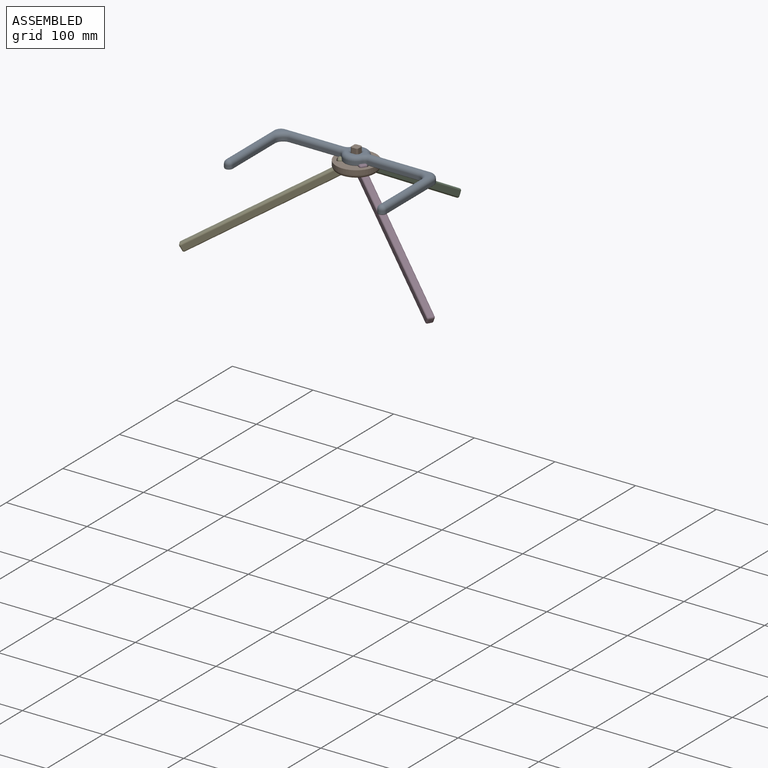
[diagram: assembled view]
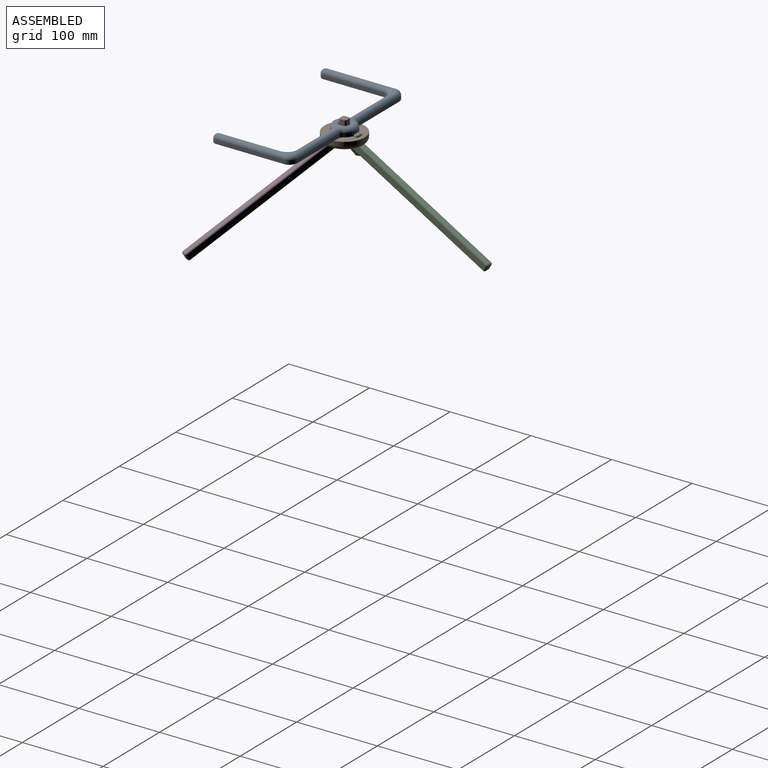
[diagram: assembled view, second angle]
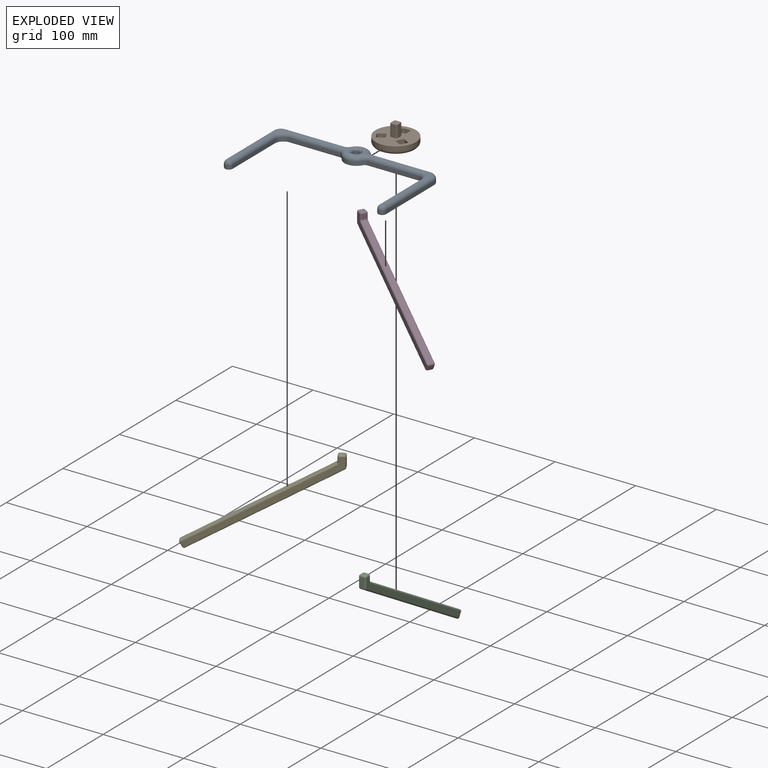
[diagram: exploded view]
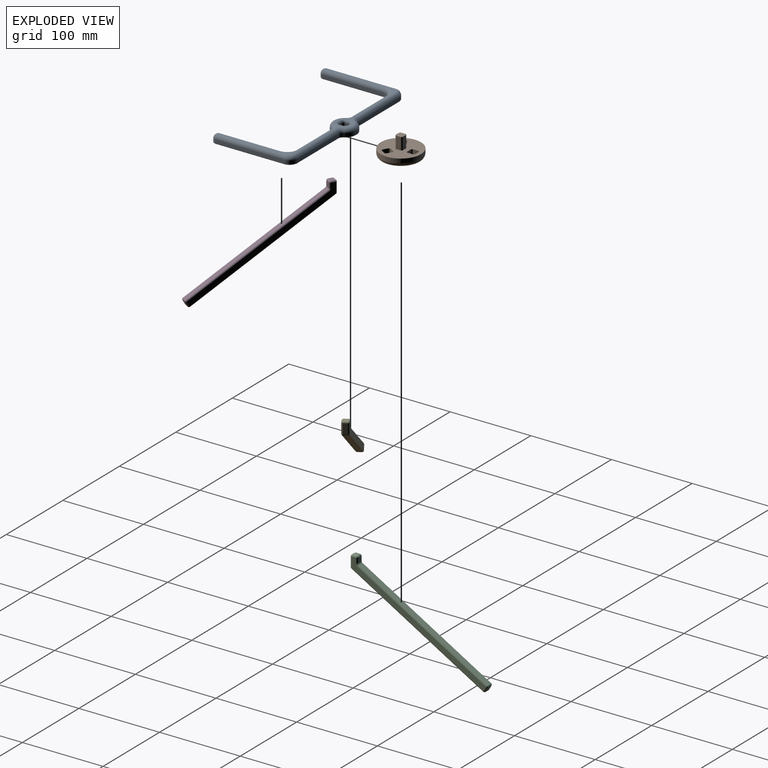
[diagram: exploded view, second angle]
ASSEMBLY  parts=5 mates=4
PART A: 88 faces, bbox 201.7x111.7x10 mm
  f0: cylinder r=3mm len=5.68mm, axis (0,0,1), area 26.8mm2, adj f11,f12,f79,f83
  f1: bspline ~3.26x3.26mm, area 4.2mm2, adj f5,f12,f29,f72,f73,f76
  f2: cylinder r=3mm len=5.68mm, axis (0,0,1), area 26.8mm2, adj f10,f29,f77,f82
  f3: bspline ~3.26x3.26mm, area 4.2mm2, adj f7,f10,f11,f74,f75,f87
  f4: bspline ~2.96x2.95mm, area 3.9mm2, adj f73,f75,f79
  f5: bspline ~2.96x2.95mm, area 3.9mm2, adj f1,f72,f73
  f6: bspline ~3.11x3.11mm, area 2.5mm2, adj f72,f74,f77
  f7: bspline ~3.11x3.11mm, area 2.5mm2, adj f3,f74,f75
  f8: plane 34.64x20mm, normal (0,0,1), area 121.3mm2, adj f38,f41,f42,f43,f44,f47,f78,f80
  f9: plane 15x15mm, normal (0,0,1), area 42.9mm2, adj f46,f48,f49,f50
  f10: plane 6.03x4.03mm, normal (0,-1,0), area 24mm2, adj f2,f3,f74,f77,f84,f87
  f11: plane 6.03x4.03mm, normal (-1,0,0), area 24mm2, adj f0,f3,f75,f79,f85,f87
  f12: plane 6.03x4.03mm, normal (0,1,0), area 24mm2, adj f0,f1,f73,f76,f79,f81
  f13: plane 72.68x4mm, normal (0,1,0), area 290.7mm2, adj f14,f36,f39,f54
  f14: cylinder r=10mm len=10mm, axis (0,0,-1), area 62.8mm2, adj f13,f15,f37,f56
  f15: plane 85x4mm, normal (-1,0,0), area 340mm2, adj f14,f16,f32,f58
  f16: cylinder r=5mm len=10mm, axis (0,0,-1), area 62.8mm2, adj f15,f17,f33,f60
  f17: plane 75x4mm, normal (1,0,0), area 300mm2, adj f16,f18,f32,f62
  f18: cylinder r=10mm len=10mm, axis (0,0,-1), area 62.8mm2, adj f17,f19,f34,f64
  f19: plane 62.68x4mm, normal (0,-1,0), area 250.7mm2, adj f18,f35,f36,f66
  f20: cylinder r=15mm len=25.98mm, axis (0,0,-1), area 125.7mm2, adj f35,f40,f41,f70
  f21: plane 62.68x4mm, normal (0,-1,0), area 250.7mm2, adj f22,f40,f46,f69
  f22: cylinder r=10mm len=10mm, axis (0,0,-1), area 62.8mm2, adj f21,f23,f48,f67
  f23: plane 75x4mm, normal (-1,0,0), area 300mm2, adj f22,f24,f49,f65
  f24: cylinder r=5mm len=10mm, axis (0,0,-1), area 62.8mm2, adj f23,f25,f51,f63
  f25: plane 85x4mm, normal (1,0,0), area 340mm2, adj f24,f26,f49,f61
  f26: cylinder r=10mm len=10mm, axis (0,0,-1), area 62.8mm2, adj f25,f27,f50,f59
  f27: plane 72.68x4mm, normal (0,1,0), area 290.7mm2, adj f26,f45,f46,f57
  f28: cylinder r=15mm len=25.98mm, axis (0,0,-1), area 125.7mm2, adj f39,f44,f45,f53
  f29: plane 6.03x4.03mm, normal (1,0,0), area 24mm2, adj f1,f2,f72,f76,f77,f80
  f30: plane 15x15mm, normal (0,0,1), area 42.9mm2, adj f32,f34,f36,f37
  f31: plane 198x108mm, normal (0,0,-1), area 3287.8mm2, adj f52,f53,f54,f55,f56,f57,f58,f59
  f32: cylinder r=5mm len=85mm, axis (0,-1,0), area 1256.6mm2, adj f15,f17,f30,f33,f34,f37
  f33: sphere r=5mm, area 78.5mm2, adj f16,f32
  f34: torus R=15mm, axis (0,0,1), area 145.8mm2, adj f18,f30,f32,f36
  f35: cylinder r=5mm len=4.33mm, axis (0,0,-1), area 20.9mm2, adj f19,f20,f38,f68
  f36: cylinder r=5mm len=72.68mm, axis (-1,0,0), area 1063.1mm2, adj f13,f19,f30,f34,f37,f38,f42
  f37: torus R=5mm, axis (0,0,1), area 101mm2, adj f14,f30,f32,f36
  f38: torus R=10mm, axis (0,0,1), area 56.1mm2, adj f8,f35,f36,f41
  f39: cylinder r=5mm len=4.33mm, axis (0,0,-1), area 20.9mm2, adj f13,f28,f42,f52
  f40: cylinder r=5mm len=4.33mm, axis (0,0,-1), area 20.9mm2, adj f20,f21,f43,f71
  f41: torus R=10mm, axis (0,0,1), area 216.9mm2, adj f8,f20,f38,f43
  f42: torus R=10mm, axis (0,0,1), area 56.1mm2, adj f8,f36,f39,f44
  f43: torus R=10mm, axis (0,0,1), area 56.1mm2, adj f8,f40,f41,f46
  f44: torus R=10mm, axis (0,0,1), area 216.9mm2, adj f8,f28,f42,f47
  f45: cylinder r=5mm len=4.33mm, axis (0,0,-1), area 20.9mm2, adj f27,f28,f47,f55
  f46: cylinder r=5mm len=72.68mm, axis (-1,0,0), area 1063.1mm2, adj f9,f21,f27,f43,f47,f48,f50
  f47: torus R=10mm, axis (0,0,1), area 56.1mm2, adj f8,f44,f45,f46
  f48: torus R=15mm, axis (0,0,1), area 145.8mm2, adj f9,f22,f46,f49
  f49: cylinder r=5mm len=85mm, axis (0,1,0), area 1256.6mm2, adj f9,f23,f25,f48,f50,f51
  f50: torus R=5mm, axis (0,0,1), area 101mm2, adj f9,f26,f46,f49
  f51: sphere r=5mm, area 78.5mm2, adj f24,f49
  f52: torus R=6mm, axis (0,0,1), area 8.8mm2, adj f31,f39,f53,f54
  f53: torus R=14mm, axis (0,0,1), area 48.2mm2, adj f28,f31,f52,f55
  f54: cylinder r=1mm len=72.68mm, axis (-1,0,0), area 114.2mm2, adj f13,f31,f52,f56
  f55: torus R=6mm, axis (0,0,1), area 8.8mm2, adj f31,f45,f53,f57
  f56: torus R=9mm, axis (0,0,1), area 23.8mm2, adj f14,f31,f54,f58
  f57: cylinder r=1mm len=72.68mm, axis (-1,0,0), area 114.2mm2, adj f27,f31,f55,f59
  f58: cylinder r=1mm len=85mm, axis (0,-1,0), area 133.5mm2, adj f15,f31,f56,f60
  f59: torus R=9mm, axis (0,0,1), area 23.8mm2, adj f26,f31,f57,f61
  f60: torus R=4mm, axis (0,0,1), area 22.9mm2, adj f16,f31,f58,f62
  f61: cylinder r=1mm len=85mm, axis (0,1,0), area 133.5mm2, adj f25,f31,f59,f63
  f62: cylinder r=1mm len=75mm, axis (0,1,0), area 117.8mm2, adj f17,f31,f60,f64
  f63: torus R=4mm, axis (0,0,1), area 22.9mm2, adj f24,f31,f61,f65
  f64: torus R=11mm, axis (0,0,1), area 25.6mm2, adj f18,f31,f62,f66
  f65: cylinder r=1mm len=75mm, axis (0,-1,0), area 117.8mm2, adj f23,f31,f63,f67
  f66: cylinder r=1mm len=62.68mm, axis (1,0,0), area 98.5mm2, adj f19,f31,f64,f68
  f67: torus R=11mm, axis (0,0,1), area 25.6mm2, adj f22,f31,f65,f69
  f68: torus R=6mm, axis (0,0,1), area 8.8mm2, adj f31,f35,f66,f70
  f69: cylinder r=1mm len=62.68mm, axis (1,0,0), area 98.5mm2, adj f21,f31,f67,f71
  f70: torus R=14mm, axis (0,0,1), area 48.2mm2, adj f20,f31,f68,f71
  f71: torus R=6mm, axis (0,0,1), area 8.8mm2, adj f31,f40,f69,f70
  f72: cylinder r=1mm len=12mm, axis (0,1,0), area 11.3mm2, adj f1,f5,f6,f29,f31,f77
  f73: cylinder r=1mm len=12mm, axis (-1,0,0), area 11.3mm2, adj f1,f4,f5,f12,f31,f79
  f74: cylinder r=1mm len=12mm, axis (1,0,0), area 11.3mm2, adj f3,f6,f7,f10,f31,f77
  f75: cylinder r=1mm len=12mm, axis (0,-1,0), area 11.3mm2, adj f3,f4,f7,f11,f31,f79
  f76: cylinder r=3mm len=5.68mm, axis (0,0,-1), area 26.8mm2, adj f1,f12,f29,f78
  f77: bspline ~3.26x3.26mm, area 4.2mm2, adj f2,f6,f10,f29,f72,f74
  f78: torus R=6mm, axis (0,0,1), area 30.3mm2, adj f8,f76,f80,f81
  f79: bspline ~3.26x3.26mm, area 4.2mm2, adj f0,f4,f11,f12,f73,f75
  f80: cylinder r=3mm len=4mm, axis (0,-1,0), area 18.8mm2, adj f8,f29,f78,f82
  f81: cylinder r=3mm len=4mm, axis (1,0,0), area 18.8mm2, adj f8,f12,f78,f83
  f82: torus R=6mm, axis (0,0,1), area 30.3mm2, adj f2,f8,f80,f84
  f83: torus R=6mm, axis (0,0,1), area 30.3mm2, adj f0,f8,f81,f85
  f84: cylinder r=3mm len=4mm, axis (-1,0,0), area 18.8mm2, adj f8,f10,f82,f86
  f85: cylinder r=3mm len=4mm, axis (0,1,0), area 18.8mm2, adj f8,f11,f83,f86
  f86: torus R=6mm, axis (0,0,1), area 30.3mm2, adj f8,f84,f85,f87
  f87: cylinder r=3mm len=5.68mm, axis (0,0,-1), area 26.8mm2, adj f3,f10,f11,f86
PART B: 37 faces, bbox 54.1x54.1x25 mm
  f0: cylinder r=2mm len=10mm, axis (0,0,-1), area 31.4mm2, adj f1,f21,f25,f26,f36
  f1: plane 10x5.2mm, normal (-0.5,0.87,0), area 60mm2, adj f0,f2,f25,f26
  f2: cylinder r=2mm len=10mm, axis (0,0,-1), area 31.4mm2, adj f1,f3,f25,f26
  f3: plane 10x5.2mm, normal (0.87,0.5,0), area 60mm2, adj f2,f4,f25,f26
  f4: cylinder r=2mm len=10mm, axis (0,0,-1), area 31.4mm2, adj f3,f5,f25,f26
  f5: plane 10x5.2mm, normal (0.5,-0.87,0), area 60mm2, adj f4,f6,f25,f26
  f6: cylinder r=2mm len=10mm, axis (0,0,-1), area 31.4mm2, adj f5,f21,f25,f26,f36
  f7: cylinder r=2mm len=10mm, axis (0,0,-1), area 31.4mm2, adj f8,f22,f25,f26,f36
  f8: plane 10x6mm, normal (1,0,0), area 60mm2, adj f7,f9,f25,f26
  f9: cylinder r=2mm len=10mm, axis (0,0,-1), area 31.4mm2, adj f8,f10,f25,f26
  f10: plane 10x6mm, normal (0,-1,0), area 60mm2, adj f9,f11,f25,f26
  f11: cylinder r=2mm len=10mm, axis (0,0,-1), area 31.4mm2, adj f10,f12,f25,f26
  f12: plane 10x6mm, normal (-1,0,0), area 60mm2, adj f11,f13,f25,f26
  f13: cylinder r=2mm len=10mm, axis (0,0,-1), area 31.4mm2, adj f12,f22,f25,f26,f36
  f14: cylinder r=2mm len=10mm, axis (0,0,-1), area 31.4mm2, adj f15,f23,f25,f26,f36
  f15: plane 10x5.2mm, normal (-0.5,-0.87,0), area 60mm2, adj f14,f16,f25,f26
  f16: cylinder r=2mm len=10mm, axis (0,0,-1), area 31.4mm2, adj f15,f17,f25,f26
  f17: plane 10x5.2mm, normal (-0.87,0.5,0), area 60mm2, adj f16,f18,f25,f26
  f18: cylinder r=2mm len=10mm, axis (0,0,-1), area 31.4mm2, adj f17,f19,f25,f26
  f19: plane 10x5.2mm, normal (0.5,0.87,0), area 60mm2, adj f18,f20,f25,f26
  f20: cylinder r=2mm len=10mm, axis (0,0,-1), area 31.4mm2, adj f19,f23,f25,f26,f36
  f21: plane 10x5.2mm, normal (-0.87,-0.5,0), area 60mm2, adj f0,f6,f25,f36
  f22: plane 10x6mm, normal (0,1,0), area 60mm2, adj f7,f13,f25,f36
  f23: plane 10x5.2mm, normal (0.87,-0.5,0), area 60mm2, adj f14,f20,f25,f36
  f24: cylinder r=25mm len=50mm, axis (0,0,-1), area 785.4mm2, adj f25,f36
  f25: plane 50x50mm, normal (0,0,1), area 1596.2mm2, adj f0,f1,f2,f3,f4,f5,f6,f7
  f26: plane 40x39.54mm, normal (0,0,-1), area 969.8mm2, adj f0,f1,f2,f3,f4,f5,f6,f7
  f27: plane 9x9mm, normal (0,0,1), area 77.6mm2, adj f28,f29,f30,f31,f32,f33,f34,f35
  f28: cylinder r=2mm len=15mm, axis (0,0,-1), area 47.1mm2, adj f25,f27,f29,f35
  f29: plane 15x5mm, normal (1,0,0), area 75mm2, adj f25,f27,f28,f30
  f30: cylinder r=2mm len=15mm, axis (0,0,-1), area 47.1mm2, adj f25,f27,f29,f31
  f31: plane 15x5mm, normal (0,-1,0), area 75mm2, adj f25,f27,f30,f32
  f32: cylinder r=2mm len=15mm, axis (0,0,-1), area 47.1mm2, adj f25,f27,f31,f33
  f33: plane 15x5mm, normal (-1,0,0), area 75mm2, adj f25,f27,f32,f34
  f34: cylinder r=2mm len=15mm, axis (0,0,-1), area 47.1mm2, adj f25,f27,f33,f35
  f35: plane 15x5mm, normal (0,1,0), area 75mm2, adj f25,f27,f28,f34
  f36: torus R=20mm, axis (0,0,1), area 1141.2mm2, adj f0,f6,f7,f13,f14,f20,f21,f22
PART C: 38 faces, bbox 110.6x170.4x9 mm
  f0: plane 12.2x5mm, normal (0,-1,0), area 61mm2, adj f8,f11,f15,f16
  f1: plane 5x5mm, normal (1,0,0), area 25mm2, adj f16,f21,f25,f26
  f2: plane 5.85x5mm, normal (0,1,0), area 29.2mm2, adj f26,f31,f34,f37
  f3: plane 159.44x92.05mm, normal (0.87,0.5,0), area 920.5mm2, adj f23,f32,f33,f37
  f4: plane 5.2x5mm, normal (-0.5,0.87,0), area 30mm2, adj f13,f22,f23,f24
  f5: plane 163.44x94.36mm, normal (-0.87,-0.5,0), area 943.6mm2, adj f8,f12,f13,f14
  f6: plane 166.44x106.56mm, normal (0,0,1), area 1177.2mm2, adj f11,f12,f21,f22,f31,f32,f35
  f7: plane 166.44x106.56mm, normal (0,0,-1), area 1177.2mm2, adj f14,f15,f24,f25,f33,f34,f36
  f8: cylinder r=2mm len=5mm, axis (0,0,-1), area 10.5mm2, adj f0,f5,f9,f10
  f9: sphere r=2mm, area 4.2mm2, adj f8,f11,f12
  f10: sphere r=2mm, area 4.2mm2, adj f8,f14,f15
  f11: cylinder r=2mm len=12.2mm, axis (-1,0,0), area 38.3mm2, adj f0,f6,f9,f17
  f12: cylinder r=2mm len=164.44mm, axis (-0.5,0.87,0), area 592.9mm2, adj f5,f6,f9,f18
  f13: cylinder r=2mm len=5mm, axis (0,0,-1), area 15.7mm2, adj f4,f5,f18,f19
  f14: cylinder r=2mm len=164.44mm, axis (0.5,-0.87,0), area 592.9mm2, adj f5,f7,f10,f19
  f15: cylinder r=2mm len=12.2mm, axis (1,0,0), area 38.3mm2, adj f0,f7,f10,f20
  f16: cylinder r=2mm len=5mm, axis (0,0,-1), area 15.7mm2, adj f0,f1,f17,f20
  f17: sphere r=2mm, area 6.3mm2, adj f11,f16,f21
  f18: sphere r=2mm, area 6.3mm2, adj f12,f13,f22
  f19: sphere r=2mm, area 6.3mm2, adj f13,f14,f24
  f20: sphere r=2mm, area 6.3mm2, adj f15,f16,f25
  f21: cylinder r=2mm len=5mm, axis (0,-1,0), area 15.7mm2, adj f1,f6,f17,f27
  f22: cylinder r=2mm len=6.2mm, axis (0.87,0.5,0), area 18.8mm2, adj f4,f6,f18,f28
  f23: cylinder r=2mm len=5mm, axis (0,0,-1), area 15.7mm2, adj f3,f4,f28,f29
  f24: cylinder r=2mm len=6.2mm, axis (-0.87,-0.5,0), area 18.8mm2, adj f4,f7,f19,f29
  f25: cylinder r=2mm len=5mm, axis (0,1,0), area 15.7mm2, adj f1,f7,f20,f30
  f26: cylinder r=2mm len=5mm, axis (0,0,-1), area 15.7mm2, adj f1,f2,f27,f30
  f27: sphere r=2mm, area 6.3mm2, adj f21,f26,f31
  f28: sphere r=2mm, area 6.3mm2, adj f22,f23,f32
  f29: sphere r=2mm, area 6.3mm2, adj f23,f24,f33
  f30: sphere r=2mm, area 6.3mm2, adj f25,f26,f34
  f31: cylinder r=2mm len=5.85mm, axis (1,0,0), area 18.4mm2, adj f2,f6,f27,f35
  f32: cylinder r=2mm len=160.44mm, axis (0.5,-0.87,0), area 578.4mm2, adj f3,f6,f28,f35
  f33: cylinder r=2mm len=160.44mm, axis (-0.5,0.87,0), area 578.4mm2, adj f3,f7,f29,f36
  f34: cylinder r=2mm len=5.85mm, axis (-1,0,0), area 18.4mm2, adj f2,f7,f30,f36
  f35: torus R=4mm, axis (0,0,1), area 9mm2, adj f6,f31,f32,f37
  f36: torus R=4mm, axis (0,0,1), area 9mm2, adj f7,f33,f34,f37
  f37: cylinder r=2mm len=5mm, axis (0,0,1), area 10.5mm2, adj f2,f3,f35,f36
PART D: same geometry as C
PART E: same geometry as C
PLACE A t=(-49.92,-5.77,57.95)mm
PLACE B rot(axis=(0,0,1),180deg) t=(-59.43,47.65,47.95)mm
PLACE C rot(axis=(0,-1,0),90deg) t=(-54.93,62.15,55.45)mm
PLACE D rot(axis=(-0.65,-0.38,-0.65),138.6deg) t=(-49.12,36.51,55.45)mm
PLACE E rot(axis=(0.65,-0.38,0.65),138.6deg) t=(-74.24,44.3,55.45)mm
MATE fastened E.f0 <-> B.f3  axis (0.87,0.5,0) through (-68.09,42.65,57.95)mm
MATE fastened B.f24 <-> A.f20  axis (0,0,1) through (-59.43,47.65,57.95)mm
MATE fastened C.f0 <-> B.f10  axis (0,-1,0) through (-59.43,57.65,57.95)mm
MATE fastened D.f0 <-> B.f17  axis (-0.87,0.5,0) through (-50.77,42.65,57.95)mm
